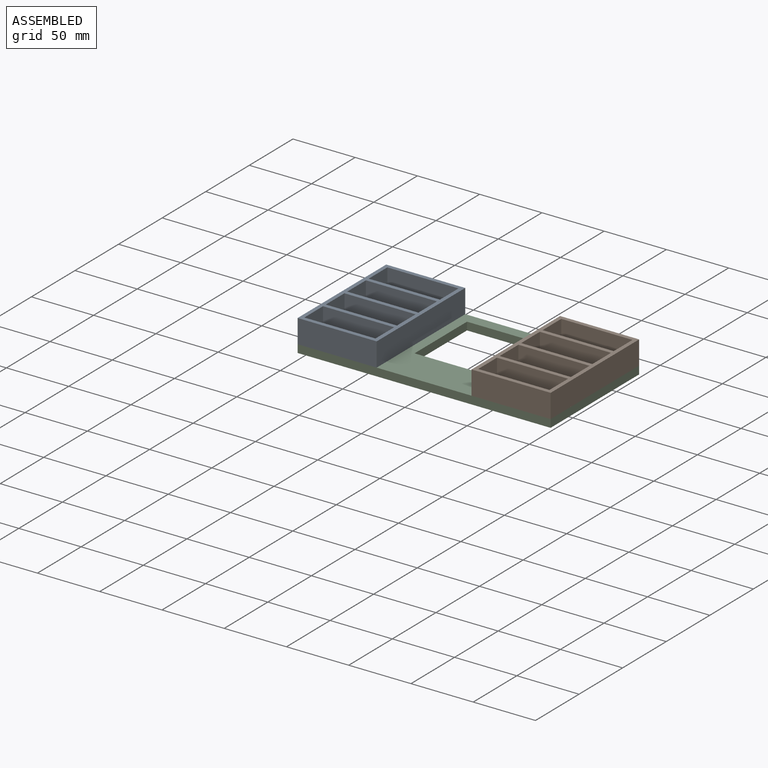
[diagram: assembled view]
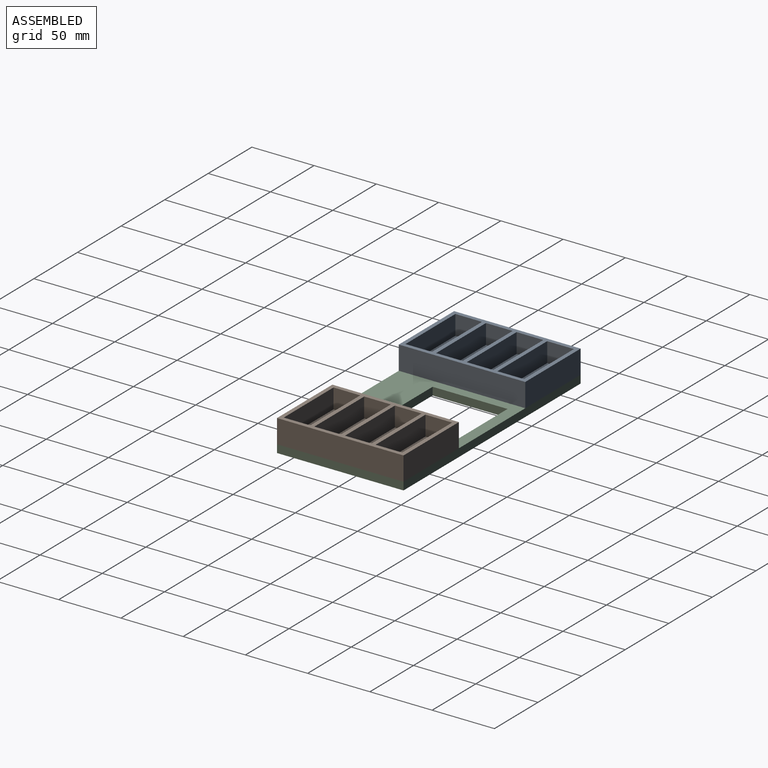
[diagram: assembled view, second angle]
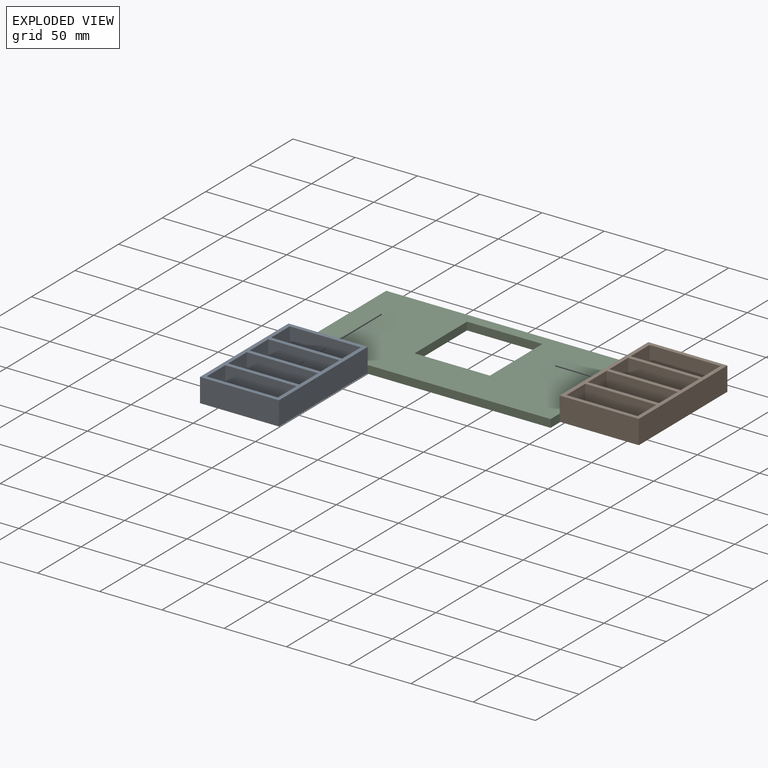
[diagram: exploded view]
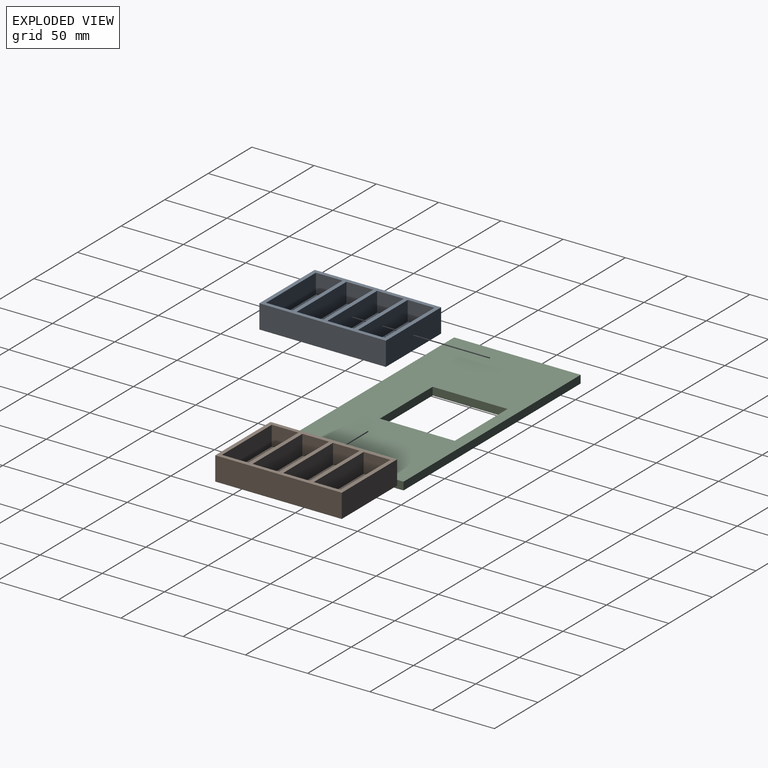
[diagram: exploded view, second angle]
ASSEMBLY  parts=3 mates=6
PART A: 26 faces, bbox 101.6x63.5x19.1 mm
  f0: plane 101.6x63.5mm, normal (0,0,1), area 1552.4mm2, adj f1,f2,f3,f4,f6,f7,f8,f9
  f1: plane 63.5x19.05mm, normal (-1,0,0), area 1209.7mm2, adj f0,f2,f4,f5
  f2: plane 101.6x19.05mm, normal (0,-1,0), area 1935.5mm2, adj f0,f1,f3,f5
  f3: plane 63.5x19.05mm, normal (1,0,0), area 1209.7mm2, adj f0,f2,f4,f5
  f4: plane 101.6x19.05mm, normal (0,1,0), area 1935.5mm2, adj f0,f1,f3,f5
  f5: plane 101.6x63.5mm, normal (0,0,-1), area 6451.6mm2, adj f1,f2,f3,f4
  f6: plane 21.43x15.88mm, normal (0,-1,0), area 340.2mm2, adj f0,f7,f9,f10
  f7: plane 57.15x15.88mm, normal (1,0,0), area 907.3mm2, adj f0,f6,f8,f10
  f8: plane 21.43x15.88mm, normal (0,1,0), area 340.2mm2, adj f0,f7,f9,f10
  f9: plane 57.15x15.88mm, normal (-1,0,0), area 907.3mm2, adj f0,f6,f8,f10
  f10: plane 57.15x21.43mm, normal (0,0,1), area 1224.8mm2, adj f6,f7,f8,f9
  f11: plane 21.43x15.88mm, normal (0,-1,0), area 340.2mm2, adj f0,f12,f14,f15
  f12: plane 57.15x15.88mm, normal (1,0,0), area 907.3mm2, adj f0,f11,f13,f15
  f13: plane 21.43x15.88mm, normal (0,1,0), area 340.2mm2, adj f0,f12,f14,f15
  f14: plane 57.15x15.88mm, normal (-1,0,0), area 907.3mm2, adj f0,f11,f13,f15
  f15: plane 57.15x21.43mm, normal (0,0,1), area 1224.8mm2, adj f11,f12,f13,f14
  f16: plane 21.43x15.88mm, normal (0,-1,0), area 340.2mm2, adj f0,f17,f19,f20
  f17: plane 57.15x15.88mm, normal (1,0,0), area 907.3mm2, adj f0,f16,f18,f20
  f18: plane 21.43x15.88mm, normal (0,1,0), area 340.2mm2, adj f0,f17,f19,f20
  f19: plane 57.15x15.88mm, normal (-1,0,0), area 907.3mm2, adj f0,f16,f18,f20
  f20: plane 57.15x21.43mm, normal (0,0,1), area 1224.8mm2, adj f16,f17,f18,f19
  f21: plane 21.43x15.88mm, normal (0,-1,0), area 340.2mm2, adj f0,f22,f24,f25
  f22: plane 57.15x15.88mm, normal (1,0,0), area 907.3mm2, adj f0,f21,f23,f25
  f23: plane 21.43x15.88mm, normal (0,1,0), area 340.2mm2, adj f0,f22,f24,f25
  f24: plane 57.15x15.88mm, normal (-1,0,0), area 907.3mm2, adj f0,f21,f23,f25
  f25: plane 57.15x21.43mm, normal (0,0,1), area 1224.8mm2, adj f21,f22,f23,f24
PART B: same geometry as A
PART C: 10 faces, bbox 203.2x101.6x6.4 mm
  f0: plane 203.2x101.6mm, normal (0,0,1), area 17003.9mm2, adj f2,f3,f4,f5,f6,f7,f8,f9
  f1: plane 203.2x101.6mm, normal (0,0,-1), area 17003.9mm2, adj f2,f3,f4,f5,f6,f7,f8,f9
  f2: plane 101.6x6.35mm, normal (-1,0,0), area 645.2mm2, adj f0,f1,f3,f5
  f3: plane 203.2x6.35mm, normal (0,-1,0), area 1290.3mm2, adj f0,f1,f2,f4
  f4: plane 101.6x6.35mm, normal (1,0,0), area 645.2mm2, adj f0,f1,f3,f5
  f5: plane 203.2x6.35mm, normal (0,1,0), area 1290.3mm2, adj f0,f1,f2,f4
  f6: plane 60.52x6.35mm, normal (0,-1,0), area 384.3mm2, adj f0,f1,f7,f9
  f7: plane 60.16x6.35mm, normal (1,0,0), area 382mm2, adj f0,f1,f6,f8
  f8: plane 60.52x6.35mm, normal (0,1,0), area 384.3mm2, adj f0,f1,f7,f9
  f9: plane 60.16x6.35mm, normal (-1,0,0), area 382mm2, adj f0,f1,f6,f8
PLACE A rot(axis=(0,0,-1),90deg) t=(31.59,76.31,12.85)mm
PLACE B rot(axis=(0,0,-1),90deg) t=(171.29,76.31,12.85)mm
PLACE C t=(31.59,-25.29,6.5)mm
MATE planar A.f1 <-> C.f5  axis (0,1,0) through (63.34,76.31,22.37)mm
MATE planar B.f4 <-> C.f4  axis (1,0,0) through (234.79,25.51,22.37)mm
MATE planar A.f2 <-> C.f2  axis (-1,0,0) through (31.59,25.51,22.37)mm
MATE planar B.f5 <-> C.f0  axis (0,0,-1) through (203.04,25.51,12.85)mm
MATE planar B.f1 <-> C.f5  axis (0,1,0) through (203.04,76.31,22.37)mm
MATE planar A.f5 <-> C.f0  axis (0,0,-1) through (63.34,25.51,12.85)mm
